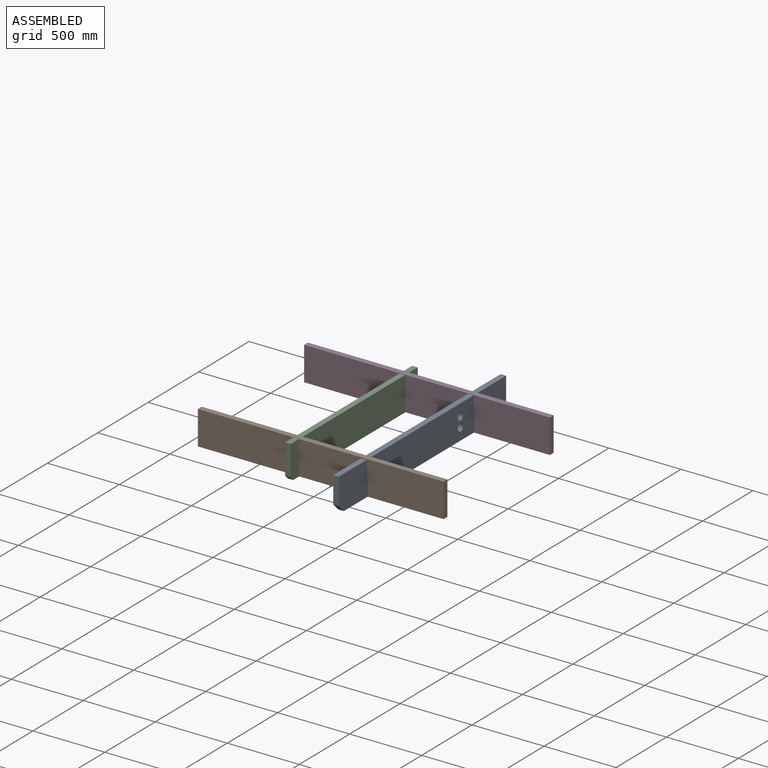
[diagram: assembled view]
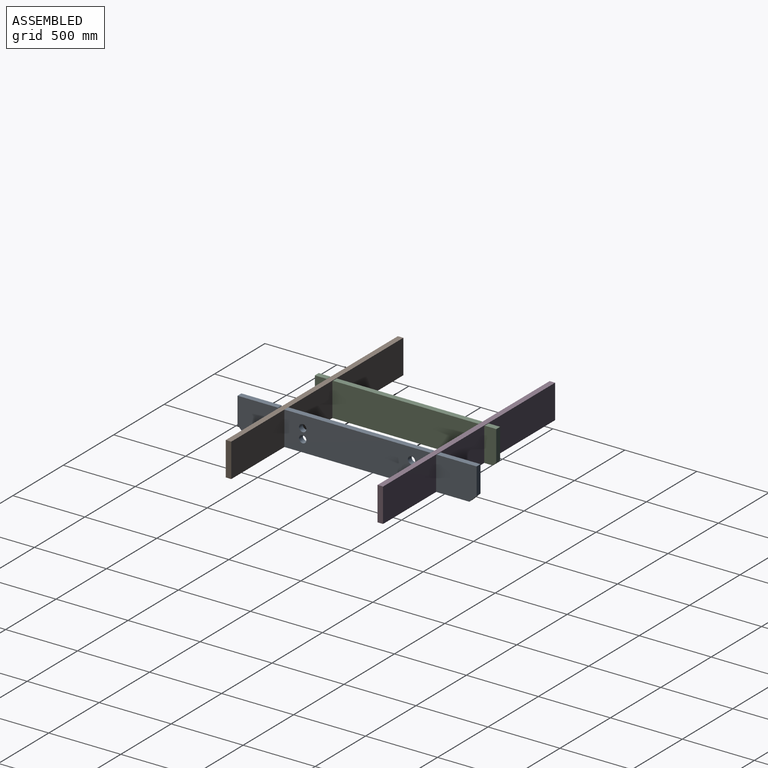
[diagram: assembled view, second angle]
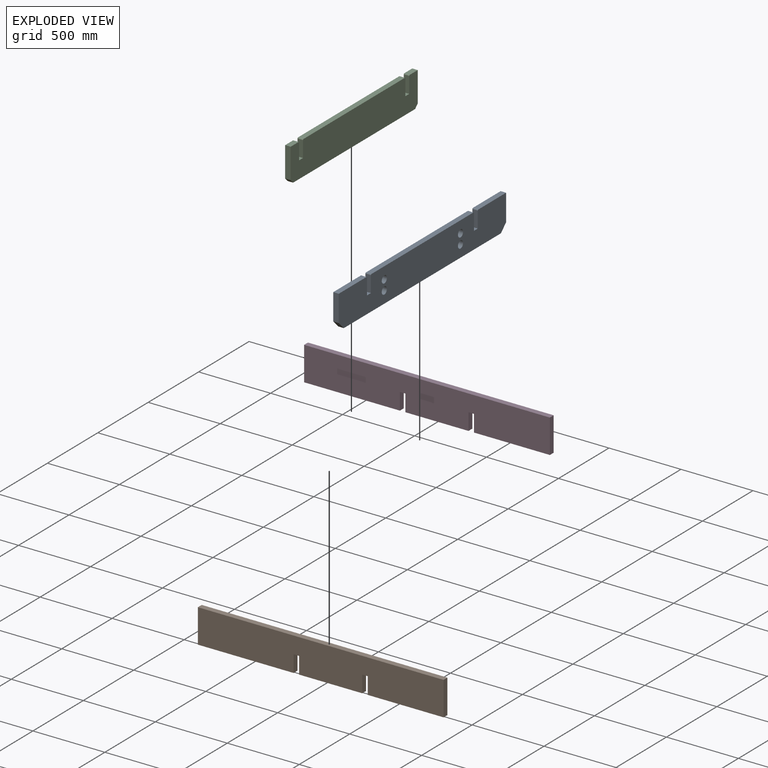
[diagram: exploded view]
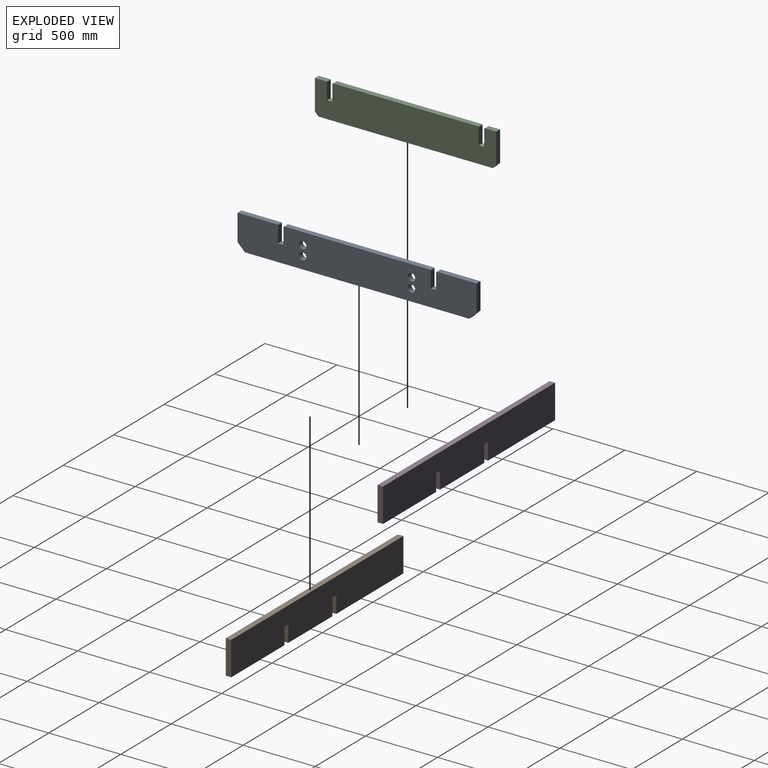
[diagram: exploded view, second angle]
ASSEMBLY  parts=4 mates=9
PART A: 24 faces, bbox 38.1x1660.5x235 mm
  f0: plane 1009.65x38.1mm, normal (0,0,1), area 38467.7mm2, adj f1,f2,f21,f23
  f1: plane 1660.53x234.95mm, normal (-1,0,0), area 370466.2mm2, adj f0,f3,f4,f5,f6,f7,f8,f9
  f2: plane 1660.53x234.95mm, normal (1,0,0), area 370466.2mm2, adj f0,f3,f4,f5,f6,f7,f8,f9
  f3: plane 274.64x38.1mm, normal (0,0,1), area 10463.7mm2, adj f1,f2,f6,f22
  f4: plane 274.64x38.1mm, normal (0,0,1), area 10463.7mm2, adj f1,f2,f7,f20
  f5: plane 1558.93x38.1mm, normal (0,0,-1), area 59395mm2, adj f1,f2,f18,f19
  f6: plane 184.15x38.1mm, normal (0,-1,0), area 7016.1mm2, adj f1,f2,f3,f18
  f7: plane 184.15x38.1mm, normal (0,1,0), area 7016.1mm2, adj f1,f2,f4,f19
  f8: cylinder r=25.4mm len=50.8mm, axis (-1,0,0), area 6080.5mm2, adj f1,f2
  f9: cylinder r=25.4mm len=50.8mm, axis (-1,0,0), area 6080.5mm2, adj f1,f2
  f10: plane 111.13x38.1mm, normal (0,1,0), area 4233.9mm2, adj f1,f2,f11,f22
  f11: plane 38.1x38.1mm, normal (0,0,1), area 1451.6mm2, adj f1,f2,f10,f12
  f12: plane 111.13x38.1mm, normal (0,-1,0), area 4233.9mm2, adj f1,f2,f11,f23
  f13: cylinder r=25.4mm len=50.8mm, axis (-1,0,0), area 6080.5mm2, adj f1,f2
  f14: cylinder r=25.4mm len=50.8mm, axis (-1,0,0), area 6080.5mm2, adj f1,f2
  f15: plane 111.13x38.1mm, normal (0,1,0), area 4233.9mm2, adj f1,f2,f16,f21
  f16: plane 38.1x38.1mm, normal (0,0,1), area 1451.6mm2, adj f1,f2,f15,f17
  f17: plane 111.13x38.1mm, normal (0,-1,0), area 4233.9mm2, adj f1,f2,f16,f20
  f18: plane 50.8x50.8mm, normal (0,-0.71,-0.71), area 2737.2mm2, adj f1,f2,f5,f6
  f19: plane 50.8x50.8mm, normal (0,0.71,-0.71), area 2737.2mm2, adj f1,f2,f5,f7
  f20: cylinder r=6.35mm len=38.1mm, axis (1,0,0), area 380mm2, adj f1,f2,f4,f17
  f21: cylinder r=6.35mm len=38.1mm, axis (-1,0,0), area 380mm2, adj f0,f1,f2,f15
  f22: cylinder r=6.35mm len=38.1mm, axis (-1,0,0), area 380mm2, adj f1,f2,f3,f10
  f23: cylinder r=6.35mm len=38.1mm, axis (1,0,0), area 380mm2, adj f0,f1,f2,f12
PART B: 14 faces, bbox 1706.9x38.1x235 mm
  f0: plane 438.15x38.1mm, normal (0,0,-1), area 16693.5mm2, adj f3,f5,f8,f12
  f1: plane 527.05x38.1mm, normal (0,0,-1), area 20080.6mm2, adj f3,f5,f6,f9
  f2: plane 665.48x38.1mm, normal (0,0,-1), area 25354.8mm2, adj f3,f5,f7,f11
  f3: plane 1706.88x234.95mm, normal (0,1,0), area 392079.9mm2, adj f0,f1,f2,f4,f6,f7,f8,f9
  f4: plane 1706.88x38.1mm, normal (0,0,1), area 65032.1mm2, adj f3,f5,f6,f7
  f5: plane 1706.88x234.95mm, normal (0,-1,0), area 392079.9mm2, adj f0,f1,f2,f4,f6,f7,f8,f9
  f6: plane 234.95x38.1mm, normal (1,0,0), area 8951.6mm2, adj f1,f3,f4,f5
  f7: plane 234.95x38.1mm, normal (-1,0,0), area 8951.6mm2, adj f2,f3,f4,f5
  f8: plane 117.48x38.1mm, normal (1,0,0), area 4475.8mm2, adj f0,f3,f5,f10
  f9: plane 117.48x38.1mm, normal (-1,0,0), area 4475.8mm2, adj f1,f3,f5,f10
  f10: plane 38.1x38.1mm, normal (0,0,-1), area 1451.6mm2, adj f3,f5,f8,f9
  f11: plane 117.48x38.1mm, normal (1,0,0), area 4475.8mm2, adj f2,f3,f5,f13
  f12: plane 117.48x38.1mm, normal (-1,0,0), area 4475.8mm2, adj f0,f3,f5,f13
  f13: plane 38.1x38.1mm, normal (0,0,-1), area 1451.6mm2, adj f3,f5,f11,f12
PART C: 20 faces, bbox 38.1x1260.5x235 mm
  f0: plane 1003.3x38.1mm, normal (0,0,1), area 38225.7mm2, adj f1,f2,f14,f16
  f1: plane 1260.48x234.95mm, normal (-1,0,0), area 286517.2mm2, adj f0,f3,f4,f5,f6,f7,f8,f9
  f2: plane 1260.48x234.95mm, normal (1,0,0), area 286517.2mm2, adj f0,f3,f4,f5,f6,f7,f8,f9
  f3: plane 77.79x38.1mm, normal (0,0,1), area 2963.7mm2, adj f1,f2,f6,f17
  f4: plane 77.79x38.1mm, normal (0,0,1), area 2963.7mm2, adj f1,f2,f7,f15
  f5: plane 1209.68x38.1mm, normal (0,0,-1), area 46088.6mm2, adj f1,f2,f18,f19
  f6: plane 209.55x38.1mm, normal (0,-1,0), area 7983.9mm2, adj f1,f2,f3,f19
  f7: plane 209.55x38.1mm, normal (0,1,0), area 7983.9mm2, adj f1,f2,f4,f18
  f8: plane 111.13x38.1mm, normal (0,-1,0), area 4233.9mm2, adj f1,f2,f10,f16
  f9: plane 111.13x38.1mm, normal (0,1,0), area 4233.9mm2, adj f1,f2,f10,f17
  f10: plane 38.1x38.1mm, normal (0,0,1), area 1451.6mm2, adj f1,f2,f8,f9
  f11: plane 111.13x38.1mm, normal (0,1,0), area 4233.9mm2, adj f1,f2,f12,f14
  f12: plane 38.1x38.1mm, normal (0,0,1), area 1451.6mm2, adj f1,f2,f11,f13
  f13: plane 111.13x38.1mm, normal (0,-1,0), area 4233.9mm2, adj f1,f2,f12,f15
  f14: cylinder r=6.35mm len=38.1mm, axis (-1,0,0), area 380mm2, adj f0,f1,f2,f11
  f15: cylinder r=6.35mm len=38.1mm, axis (1,0,0), area 380mm2, adj f1,f2,f4,f13
  f16: cylinder r=6.35mm len=38.1mm, axis (1,0,0), area 380mm2, adj f0,f1,f2,f8
  f17: cylinder r=6.35mm len=38.1mm, axis (-1,0,0), area 380mm2, adj f1,f2,f3,f9
  f18: plane 38.1x25.4mm, normal (0,0.71,-0.71), area 1368.6mm2, adj f1,f2,f5,f7
  f19: plane 38.1x25.4mm, normal (0,-0.71,-0.71), area 1368.6mm2, adj f1,f2,f5,f6
PART D: same geometry as B
PLACE A t=(307.34,-530.22,0)mm
PLACE B t=(0,-1054.1,0)mm
PLACE C t=(-168.91,-527.05,0)mm
PLACE D at identity fixed
MATE planar C.f8 <-> B.f3  axis (0,-1,0) through (-168.91,-1035.05,55.56)mm
MATE planar B.f10 <-> A.f11  axis (0,0,-1) through (307.34,-1054.1,0)mm
MATE planar D.f8 <-> A.f1  axis (1,0,0) through (288.29,0,-58.74)mm
MATE planar C.f12 <-> D.f13  axis (0,0,1) through (-168.91,0,0)mm
MATE planar C.f1 <-> D.f11  axis (-1,0,0) through (-187.96,-527.05,-1.6)mm
MATE planar C.f13 <-> D.f3  axis (0,-1,0) through (-168.91,19.05,55.56)mm
MATE planar A.f17 <-> D.f3  axis (0,-1,0) through (307.34,19.05,55.56)mm
MATE planar A.f16 <-> D.f10  axis (0,0,1) through (307.34,0,0)mm
MATE planar C.f1 <-> B.f11  axis (-1,0,0) through (-187.96,-527.05,-1.6)mm
